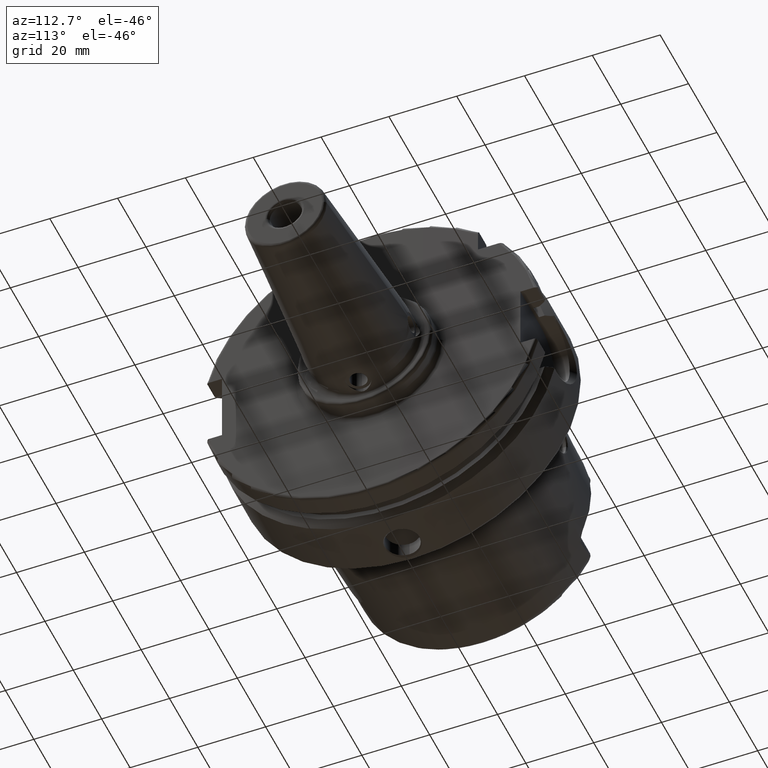
[diagram: clean part render]
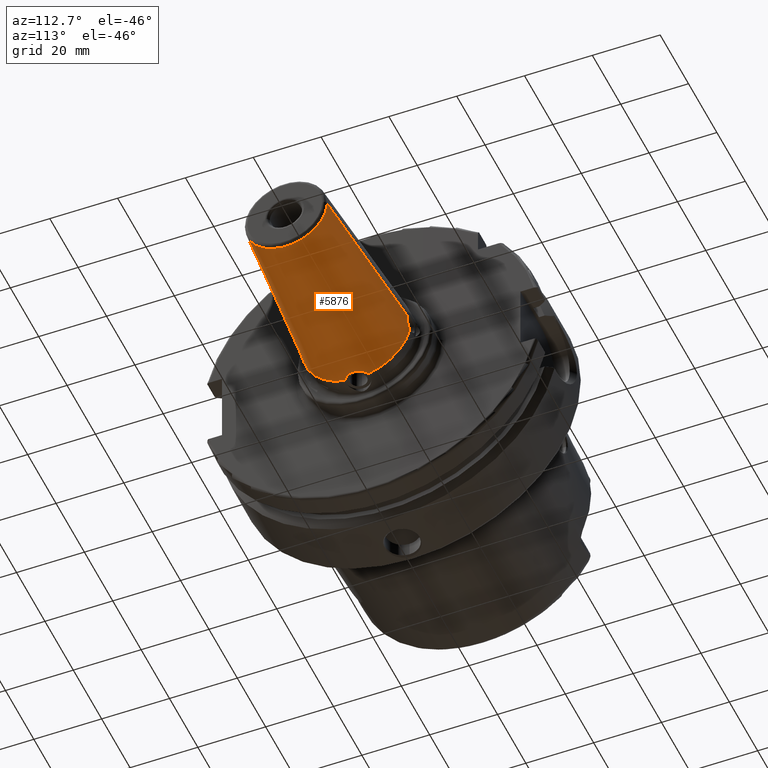
[diagram: same view with one face highlighted and labeled with its STEP entity id]
A machine part, auxiliary view. The second image highlights one B-rep face of the part: STEP entity #5876.
In plain terms, the highlighted conical surface has half-angle 4.5 deg.
Its self-contained STEP definition (entity closure, byte-faithful):
#2248=CARTESIAN_POINT('',(3.917518105530E1,0.E0,0.E0));
#2249=DIRECTION('',(-1.E0,0.E0,0.E0));
#2250=DIRECTION('',(0.E0,9.785413461195E-1,-2.060505615975E-1));
#2251=AXIS2_PLACEMENT_3D('',#2248,#2249,#2250);
#2276=CARTESIAN_POINT('',(3.917518105530E1,0.E0,0.E0));
#2277=DIRECTION('',(-1.E0,0.E0,0.E0));
#2278=DIRECTION('',(0.E0,-2.060505615975E-1,-9.785413461195E-1));
#2279=AXIS2_PLACEMENT_3D('',#2276,#2277,#2278);
#2308=CARTESIAN_POINT('',(4.15E1,0.E0,-1.581703278099E1));
#2309=CARTESIAN_POINT('',(4.15E1,2.306414983894E-1,-1.581703278099E1));
#2310=CARTESIAN_POINT('',(4.145516853146E1,6.986659822052E-1,
-1.581051522337E1));
#2311=CARTESIAN_POINT('',(4.123315572528E1,1.406100959775E0,-1.578035914918E1));
#2312=CARTESIAN_POINT('',(4.087559621413E1,2.038861556809E0,-1.573834506658E1));
#2313=CARTESIAN_POINT('',(4.039341716515E1,2.587477732862E0,-1.569478542054E1));
#2314=CARTESIAN_POINT('',(3.982390690265E1,3.015011703098E0,-1.566274224664E1));
#2315=CARTESIAN_POINT('',(3.939603338519E1,3.218083928922E0,-1.565547598434E1));
#2316=CARTESIAN_POINT('',(3.917518105530E1,3.296808985560E0,-1.565666153791E1));
#2318=CARTESIAN_POINT('',(3.917518105530E1,-3.296808985560E0,
-1.565666153791E1));
#2319=CARTESIAN_POINT('',(3.939747477125E1,-3.217570132219E0,
-1.565546824686E1));
#2320=CARTESIAN_POINT('',(3.982732421411E1,-3.013129754243E0,
-1.566284503305E1));
#2321=CARTESIAN_POINT('',(4.039736290936E1,-2.583890415418E0,
-1.569508093331E1));
#2322=CARTESIAN_POINT('',(4.087795405537E1,-2.035088902578E0,
-1.573861066441E1));
#2323=CARTESIAN_POINT('',(4.123330186189E1,-1.405689893857E0,
-1.578038219715E1));
#2324=CARTESIAN_POINT('',(4.145584917696E1,-6.957315605946E-1,
-1.581060846341E1));
#2325=CARTESIAN_POINT('',(4.15E1,-2.294867343542E-1,-1.581703278099E1));
#2326=CARTESIAN_POINT('',(4.15E1,0.E0,-1.581703278099E1));
#2328=CARTESIAN_POINT('',(4.149999998652E1,-1.581703278206E1,
1.562007323161E-9));
#2329=CARTESIAN_POINT('',(4.149999998652E1,-1.581703278211E1,
-2.888089558319E-1));
#2330=CARTESIAN_POINT('',(4.142798375468E1,-1.580653232975E1,
-8.659564096402E-1));
#2331=CARTESIAN_POINT('',(4.111324479483E1,-1.576482497016E1,
-1.676175182502E0));
#2332=CARTESIAN_POINT('',(4.060790886870E1,-1.571120216126E1,
-2.387335603040E0));
#2333=CARTESIAN_POINT('',(3.995105746229E1,-1.566633342562E1,
-2.947552425914E0));
#2334=CARTESIAN_POINT('',(3.944062578090E1,-1.565523660867E1,
-3.202188516457E0));
#2335=CARTESIAN_POINT('',(3.917518105530E1,-1.565666153791E1,
-3.296808985560E0));
#2337=CARTESIAN_POINT('',(8.907845909573E1,0.E0,0.E0));
#2338=DIRECTION('',(1.E0,0.E0,0.E0));
#2339=DIRECTION('',(0.E0,-1.E0,1.975088368931E-10));
#2340=AXIS2_PLACEMENT_3D('',#2337,#2338,#2339);
#2342=DIRECTION('',(9.969173337331E-1,-7.845909572784E-2,1.787757999675E-9));
#2343=VECTOR('',#2342,4.772558114834E1);
#2344=CARTESIAN_POINT('',(4.149999998652E1,1.581703278206E1,
-1.562004598604E-9));
#2345=LINE('',#2344,#2343);
#2346=CARTESIAN_POINT('',(3.917518105530E1,1.565666153791E1,-3.296808985560E0));
#2347=CARTESIAN_POINT('',(3.944061527456E1,1.565523666507E1,-3.202192261548E0));
#2348=CARTESIAN_POINT('',(3.995124081180E1,1.566630684863E1,-2.947774147487E0));
#2349=CARTESIAN_POINT('',(4.061066672625E1,1.571144164112E1,-2.384311876462E0));
#2350=CARTESIAN_POINT('',(4.111325431532E1,1.576484591096E1,-1.675766661913E0));
#2351=CARTESIAN_POINT('',(4.142837893941E1,1.580658043808E1,
-8.646870256196E-1));
#2352=CARTESIAN_POINT('',(4.149999998652E1,1.581703278200E1,
-2.883633992512E-1));
#2353=CARTESIAN_POINT('',(4.149999998652E1,1.581703278206E1,
-1.562004598604E-9));
#2355=DIRECTION('',(9.969173337331E-1,7.845909572784E-2,-1.787758223344E-9));
#2356=VECTOR('',#2355,4.772558114834E1);
#2357=CARTESIAN_POINT('',(4.149999998652E1,-1.581703278206E1,
1.562007323161E-9));
#2358=LINE('',#2357,#2356);
#3306=CARTESIAN_POINT('',(8.907845909573E1,-1.207252684207E1,
2.384430734939E-9));
#3307=CARTESIAN_POINT('',(8.907845909573E1,1.207252684207E1,
-2.384432213397E-9));
#3308=VERTEX_POINT('',#3306);
#3309=VERTEX_POINT('',#3307);
#3370=CARTESIAN_POINT('',(4.149999998652E1,1.581703278206E1,
-1.562004598604E-9));
#3371=VERTEX_POINT('',#3370);
#3376=CARTESIAN_POINT('',(4.149999998652E1,-1.581703278206E1,
1.562007323161E-9));
#3377=VERTEX_POINT('',#3376);
#3382=CARTESIAN_POINT('',(3.917518105530E1,1.565666153791E1,-3.296808985560E0));
#3383=CARTESIAN_POINT('',(3.917518105530E1,3.296808985560E0,-1.565666153791E1));
#3384=VERTEX_POINT('',#3382);
#3385=VERTEX_POINT('',#3383);
#3386=CARTESIAN_POINT('',(3.917518105530E1,-3.296808985560E0,
-1.565666153791E1));
#3387=CARTESIAN_POINT('',(3.917518105530E1,-1.565666153791E1,
-3.296808985560E0));
#3388=VERTEX_POINT('',#3386);
#3389=VERTEX_POINT('',#3387);
#3407=VERTEX_POINT('',#2326);
#5856=CARTESIAN_POINT('',(6.412682007551E1,0.E0,0.E0));
#5857=DIRECTION('',(-1.E0,0.E0,0.E0));
#5858=DIRECTION('',(0.E0,0.E0,-1.E0));
#5859=AXIS2_PLACEMENT_3D('',#5856,#5857,#5858);
#5860=CONICAL_SURFACE('',#5859,1.403626342104E1,4.5E0);
#5861=ORIENTED_EDGE('',*,*,#5801,.T.);
#5862=ORIENTED_EDGE('',*,*,#5835,.F.);
#5863=ORIENTED_EDGE('',*,*,#5848,.F.);
#5864=ORIENTED_EDGE('',*,*,#5815,.T.);
#5865=ORIENTED_EDGE('',*,*,#5788,.F.);
#5867=ORIENTED_EDGE('',*,*,#5866,.T.);
#5869=ORIENTED_EDGE('',*,*,#5868,.T.);
#5871=ORIENTED_EDGE('',*,*,#5870,.F.);
#5873=ORIENTED_EDGE('',*,*,#5872,.F.);
#5874=EDGE_LOOP('',(#5861,#5862,#5863,#5864,#5865,#5867,#5869,#5871,#5873));
#5875=FACE_OUTER_BOUND('',#5874,.F.);
#5876=ADVANCED_FACE('',(#5875),#5860,.T.);
#2252=CIRCLE('',#2251,1.6E1);
#2280=CIRCLE('',#2279,1.6E1);
#2317=B_SPLINE_CURVE_WITH_KNOTS('',3,(#2308,#2309,#2310,#2311,#2312,#2313,#2314,
#2315,#2316),.UNSPECIFIED.,.F.,.F.,(4,1,1,1,1,1,4),(0.E0,1.666666666667E-1,
3.333333333333E-1,5.E-1,6.666666666667E-1,8.333333333333E-1,1.E0),
.UNSPECIFIED.);
#2327=B_SPLINE_CURVE_WITH_KNOTS('',3,(#2318,#2319,#2320,#2321,#2322,#2323,#2324,
#2325,#2326),.UNSPECIFIED.,.F.,.F.,(4,1,1,1,1,1,4),(0.E0,1.666666666667E-1,
3.333333333333E-1,5.E-1,6.666666666667E-1,8.333333333333E-1,1.E0),
.UNSPECIFIED.);
#2336=B_SPLINE_CURVE_WITH_KNOTS('',3,(#2328,#2329,#2330,#2331,#2332,#2333,#2334,
#2335),.UNSPECIFIED.,.F.,.F.,(4,1,1,1,1,4),(0.E0,2.E-1,4.E-1,6.E-1,8.E-1,1.E0),
.UNSPECIFIED.);
#2341=CIRCLE('',#2340,1.207252684207E1);
#2354=B_SPLINE_CURVE_WITH_KNOTS('',3,(#2346,#2347,#2348,#2349,#2350,#2351,#2352,
#2353),.UNSPECIFIED.,.F.,.F.,(4,1,1,1,1,4),(0.E0,2.E-1,4.E-1,6.E-1,8.E-1,1.E0),
.UNSPECIFIED.);
#5788=EDGE_CURVE('',#3377,#3389,#2336,.T.);
#5801=EDGE_CURVE('',#3384,#3385,#2252,.T.);
#5815=EDGE_CURVE('',#3388,#3389,#2280,.T.);
#5835=EDGE_CURVE('',#3407,#3385,#2317,.T.);
#5848=EDGE_CURVE('',#3388,#3407,#2327,.T.);
#5866=EDGE_CURVE('',#3377,#3308,#2358,.T.);
#5868=EDGE_CURVE('',#3308,#3309,#2341,.T.);
#5870=EDGE_CURVE('',#3371,#3309,#2345,.T.);
#5872=EDGE_CURVE('',#3384,#3371,#2354,.T.);